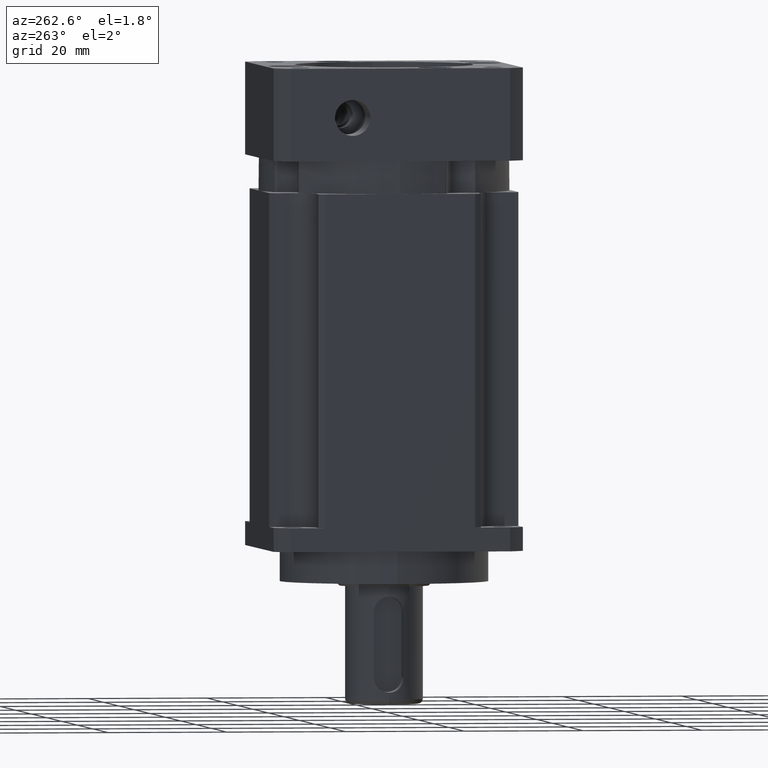
[diagram: clean part render]
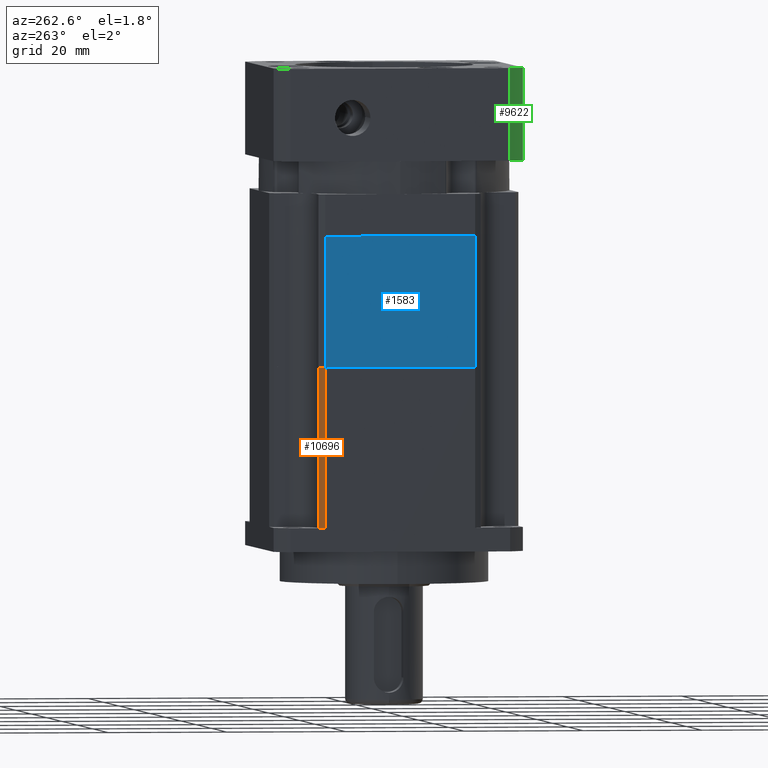
[diagram: same view with three faces highlighted in distinct colors, each labeled with its STEP entity id]
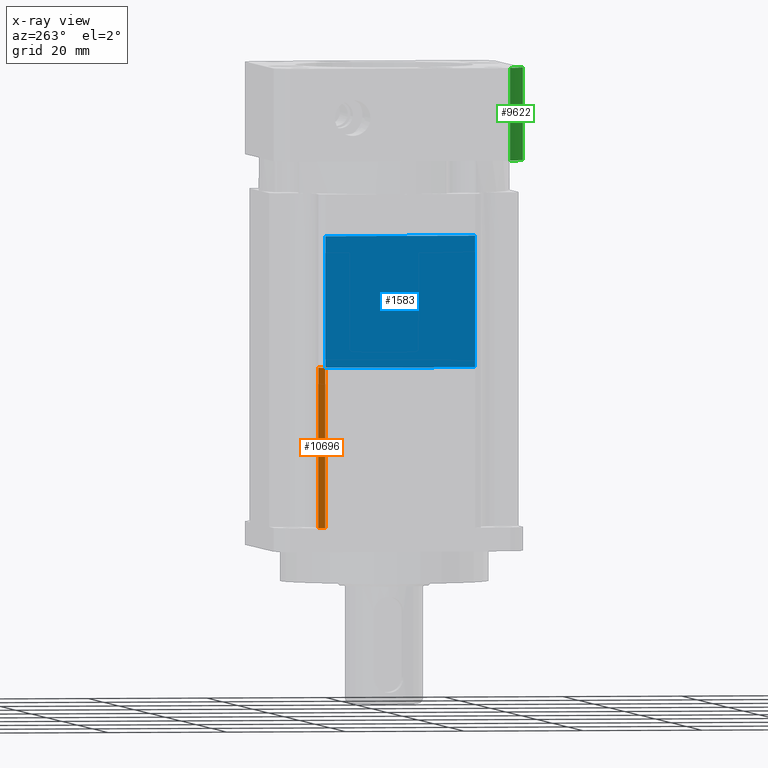
[diagram: x-ray of the same camera — body ghosted, the three highlighted faces saturated]
A machine part, auxiliary view with three faces highlighted in distinct colors.
The next image is the same camera in x-ray (body ghosted, the three faces saturated) — at least one of them is partly hidden behind the body in this view.
Their STEP definitions:

[orange] entity #10696 — the highlighted cylindrical surface (partial cylindrical patch) has radius 24.5 mm, axis along (-0, -0, -1).
#255 = DIRECTION ( 'NONE',  ( -0.0000000000000000000, -0.0000000000000000000, 1.000000000000000000 ) ) ;
#391 = CARTESIAN_POINT ( 'NONE',  ( 3632.603875364589800, 1428.957562994769900, 0.0000000000000000000 ) ) ;
#431 = DIRECTION ( 'NONE',  ( -0.0000000000000000000, -0.0000000000000000000, -1.000000000000000000 ) ) ;
#526 = CARTESIAN_POINT ( 'NONE',  ( 3632.603875364589800, 1428.957562994769900, 26.80000000000000100 ) ) ;
#721 = DIRECTION ( 'NONE',  ( -1.000000000000000000, 0.0000000000000000000, 0.0000000000000000000 ) ) ;
#1344 = CARTESIAN_POINT ( 'NONE',  ( 3653.603875950607300, 1416.338132475112200, 0.0000000000000000000 ) ) ;
#1599 = VERTEX_POINT ( 'NONE', #4014 ) ;
#1836 = EDGE_CURVE ( 'NONE', #10593, #1599, #5885, .T. ) ;
#2612 = DIRECTION ( 'NONE',  ( 0.0000000000000000000, -0.0000000000000000000, -1.000000000000000000 ) ) ;
#2621 = ORIENTED_EDGE ( 'NONE', *, *, #1836, .T. ) ;
#2859 = CARTESIAN_POINT ( 'NONE',  ( 3653.603875950607300, 1416.338132475112200, 26.80000000000000100 ) ) ;
#2933 = VECTOR ( 'NONE', #2612, 1000.000000000000000 ) ;
#3222 = DIRECTION ( 'NONE',  ( -1.000000000000000000, 0.0000000000000000000, 0.0000000000000000000 ) ) ;
#3256 = CYLINDRICAL_SURFACE ( 'NONE', #9272, 24.50000079483372100 ) ;
#3278 = ORIENTED_EDGE ( 'NONE', *, *, #10855, .T. ) ;
#4014 = CARTESIAN_POINT ( 'NONE',  ( 3633.277258400758000, 1430.015802522639900, 0.0000000000000000000 ) ) ;
#4289 = EDGE_CURVE ( 'NONE', #6791, #10566, #5298, .T. ) ;
#4319 = CARTESIAN_POINT ( 'NONE',  ( 3633.277258400758000, 1430.015802522639900, 26.80000000000000100 ) ) ;
#4342 = ORIENTED_EDGE ( 'NONE', *, *, #4289, .T. ) ;
#4744 = CARTESIAN_POINT ( 'NONE',  ( 3632.603875364589800, 1428.957563482365500, 26.80000000000000100 ) ) ;
#5298 = LINE ( 'NONE', #4744, #11480 ) ;
#5511 = FACE_OUTER_BOUND ( 'NONE', #10592, .T. ) ;
#5885 = LINE ( 'NONE', #4319, #2933 ) ;
#6100 = CIRCLE ( 'NONE', #7675, 24.50000079483372100 ) ;
#6468 = EDGE_CURVE ( 'NONE', #10566, #10593, #6100, .T. ) ;
#6791 = VERTEX_POINT ( 'NONE', #391 ) ;
#7658 = DIRECTION ( 'NONE',  ( 0.0000000000000000000, 0.0000000000000000000, 1.000000000000000000 ) ) ;
#7675 = AXIS2_PLACEMENT_3D ( 'NONE', #11206, #431, #3222 ) ;
#7718 = ORIENTED_EDGE ( 'NONE', *, *, #6468, .T. ) ;
#8832 = AXIS2_PLACEMENT_3D ( 'NONE', #1344, #7658, #11249 ) ;
#9272 = AXIS2_PLACEMENT_3D ( 'NONE', #2859, #10675, #721 ) ;
#9779 = CARTESIAN_POINT ( 'NONE',  ( 3633.277258400758000, 1430.015802522639900, 26.80000000000000100 ) ) ;
#10002 = CIRCLE ( 'NONE', #8832, 24.50000079483372100 ) ;
#10566 = VERTEX_POINT ( 'NONE', #526 ) ;
#10592 = EDGE_LOOP ( 'NONE', ( #7718, #2621, #3278, #4342 ) ) ;
#10593 = VERTEX_POINT ( 'NONE', #9779 ) ;
#10675 = DIRECTION ( 'NONE',  ( -0.0000000000000000000, -0.0000000000000000000, -1.000000000000000000 ) ) ;
#10696 = ADVANCED_FACE ( 'NONE', ( #5511 ), #3256, .T. ) ;
#10855 = EDGE_CURVE ( 'NONE', #1599, #6791, #10002, .T. ) ;
#11206 = CARTESIAN_POINT ( 'NONE',  ( 3653.603875950607300, 1416.338132475112200, 26.80000000000000100 ) ) ;
#11249 = DIRECTION ( 'NONE',  ( -1.000000000000000000, 4.894044194676144600E-013, 0.0000000000000000000 ) ) ;
#11480 = VECTOR ( 'NONE', #255, 1000.000000000000000 ) ;

[blue] entity #1583 — the highlighted planar face has unit normal (-1, 0, 0).
#53 = CARTESIAN_POINT ( 'NONE',  ( 3674.603875742843700, 1403.718703088253500, 0.0000000000000000000 ) ) ;
#58 = CARTESIAN_POINT ( 'NONE',  ( 3674.603875742843700, 1428.957562478882200, 22.00000000000000000 ) ) ;
#451 = CARTESIAN_POINT ( 'NONE',  ( 3674.603875742843700, 1428.957562478882000, 22.00000000000000000 ) ) ;
#758 = EDGE_LOOP ( 'NONE', ( #10177, #1869, #7823, #5939 ) ) ;
#1073 = CARTESIAN_POINT ( 'NONE',  ( 3674.603875742843700, 1428.957562478882000, 22.00000000000000000 ) ) ;
#1302 = VERTEX_POINT ( 'NONE', #53 ) ;
#1499 = LINE ( 'NONE', #1073, #3892 ) ;
#1547 = EDGE_CURVE ( 'NONE', #3151, #11504, #1499, .T. ) ;
#1583 = ADVANCED_FACE ( 'NONE', ( #9683 ), #10079, .T. ) ;
#1869 = ORIENTED_EDGE ( 'NONE', *, *, #6065, .T. ) ;
#2382 = DIRECTION ( 'NONE',  ( -0.0000000000000000000, 1.000000000000000000, 0.0000000000000000000 ) ) ;
#2931 = CARTESIAN_POINT ( 'NONE',  ( 3674.603875742843700, 1428.957562478882200, 0.0000000000000000000 ) ) ;
#3151 = VERTEX_POINT ( 'NONE', #58 ) ;
#3283 = CARTESIAN_POINT ( 'NONE',  ( 3674.603875742843700, 1403.718703088254000, 22.00000000000000000 ) ) ;
#3892 = VECTOR ( 'NONE', #8308, 1000.000000000000000 ) ;
#3932 = DIRECTION ( 'NONE',  ( -0.0000000000000000000, 0.0000000000000000000, -1.000000000000000000 ) ) ;
#4301 = VECTOR ( 'NONE', #5021, 1000.000000000000000 ) ;
#4443 = EDGE_CURVE ( 'NONE', #9229, #3151, #8248, .T. ) ;
#4559 = EDGE_CURVE ( 'NONE', #1302, #9229, #6278, .T. ) ;
#4691 = CARTESIAN_POINT ( 'NONE',  ( 3674.603875742843700, 1428.957562478882000, 22.00000000000000000 ) ) ;
#4888 = DIRECTION ( 'NONE',  ( 1.000000000000000000, 0.0000000000000000000, -0.0000000000000000000 ) ) ;
#5021 = DIRECTION ( 'NONE',  ( 0.0000000000000000000, -0.0000000000000000000, 1.000000000000000000 ) ) ;
#5939 = ORIENTED_EDGE ( 'NONE', *, *, #4443, .T. ) ;
#5963 = CARTESIAN_POINT ( 'NONE',  ( 3674.603875742843700, 1416.338132475112200, 0.0000000000000000000 ) ) ;
#6065 = EDGE_CURVE ( 'NONE', #11504, #1302, #8215, .T. ) ;
#6278 = LINE ( 'NONE', #5963, #10071 ) ;
#7376 = VECTOR ( 'NONE', #7892, 1000.000000000000000 ) ;
#7823 = ORIENTED_EDGE ( 'NONE', *, *, #4559, .T. ) ;
#7892 = DIRECTION ( 'NONE',  ( -0.0000000000000000000, 0.0000000000000000000, -1.000000000000000000 ) ) ;
#8016 = CARTESIAN_POINT ( 'NONE',  ( 3674.603875742843700, 1403.718703088253500, 22.00000000000000000 ) ) ;
#8215 = LINE ( 'NONE', #3283, #7376 ) ;
#8248 = LINE ( 'NONE', #451, #4301 ) ;
#8308 = DIRECTION ( 'NONE',  ( -0.0000000000000000000, -1.000000000000000000, -0.0000000000000000000 ) ) ;
#9229 = VERTEX_POINT ( 'NONE', #2931 ) ;
#9683 = FACE_OUTER_BOUND ( 'NONE', #758, .T. ) ;
#10071 = VECTOR ( 'NONE', #2382, 1000.000000000000000 ) ;
#10079 = PLANE ( 'NONE',  #11439 ) ;
#10177 = ORIENTED_EDGE ( 'NONE', *, *, #1547, .T. ) ;
#11439 = AXIS2_PLACEMENT_3D ( 'NONE', #4691, #4888, #3932 ) ;
#11504 = VERTEX_POINT ( 'NONE', #8016 ) ;

[green] entity #9622 — the highlighted cylindrical surface (partial cylindrical patch) has radius 28 mm, axis along (0, 0, -1).
#662 = CARTESIAN_POINT ( 'NONE',  ( 18.52025917745212900, 0.0000000000000000000, 21.00000000000000400 ) ) ;
#908 = DIRECTION ( 'NONE',  ( 0.0000000000000000000, 0.0000000000000000000, -1.000000000000000000 ) ) ;
#1555 = EDGE_LOOP ( 'NONE', ( #2535, #10225, #7984, #2653 ) ) ;
#1915 = VERTEX_POINT ( 'NONE', #9763 ) ;
#2233 = VERTEX_POINT ( 'NONE', #662 ) ;
#2280 = VERTEX_POINT ( 'NONE', #10452 ) ;
#2535 = ORIENTED_EDGE ( 'NONE', *, *, #8741, .T. ) ;
#2653 = ORIENTED_EDGE ( 'NONE', *, *, #3073, .T. ) ;
#3015 = AXIS2_PLACEMENT_3D ( 'NONE', #10573, #4435, #8926 ) ;
#3073 = EDGE_CURVE ( 'NONE', #5854, #2233, #11616, .T. ) ;
#3553 = CARTESIAN_POINT ( 'NONE',  ( 3.469446951953614200E-015, 15.50000000000000000, 6.938893903907228400E-015 ) ) ;
#3764 = DIRECTION ( 'NONE',  ( -0.0000000000000000000, -1.000000000000000000, -0.0000000000000000000 ) ) ;
#4339 = EDGE_CURVE ( 'NONE', #1915, #2280, #7129, .T. ) ;
#4435 = DIRECTION ( 'NONE',  ( 0.0000000000000000000, 1.000000000000000000, 0.0000000000000000000 ) ) ;
#4511 = AXIS2_PLACEMENT_3D ( 'NONE', #3553, #6300, #908 ) ;
#4868 = VECTOR ( 'NONE', #3764, 1000.000000000000000 ) ;
#5719 = VECTOR ( 'NONE', #6129, 1000.000000000000000 ) ;
#5854 = VERTEX_POINT ( 'NONE', #6749 ) ;
#5967 = FACE_OUTER_BOUND ( 'NONE', #1555, .T. ) ;
#6050 = DIRECTION ( 'NONE',  ( 0.0000000000000000000, 0.0000000000000000000, 1.000000000000000000 ) ) ;
#6129 = DIRECTION ( 'NONE',  ( -0.0000000000000000000, -1.000000000000000000, -0.0000000000000000000 ) ) ;
#6300 = DIRECTION ( 'NONE',  ( -0.0000000000000000000, -1.000000000000000000, -0.0000000000000000000 ) ) ;
#6598 = CARTESIAN_POINT ( 'NONE',  ( 20.99999999999998900, 15.50000000000000000, 18.52025917745214300 ) ) ;
#6749 = CARTESIAN_POINT ( 'NONE',  ( 18.52025917745212900, 15.50000000000000000, 21.00000000000000400 ) ) ;
#6922 = DIRECTION ( 'NONE',  ( 0.0000000000000000000, 1.000000000000000000, 0.0000000000000000000 ) ) ;
#7129 = LINE ( 'NONE', #6598, #4868 ) ;
#7472 = CARTESIAN_POINT ( 'NONE',  ( 3.469446951953614200E-015, 15.50000000000000000, 6.938893903907228400E-015 ) ) ;
#7771 = AXIS2_PLACEMENT_3D ( 'NONE', #7472, #6922, #6050 ) ;
#7984 = ORIENTED_EDGE ( 'NONE', *, *, #9150, .F. ) ;
#8741 = EDGE_CURVE ( 'NONE', #2233, #2280, #10263, .T. ) ;
#8926 = DIRECTION ( 'NONE',  ( 0.0000000000000000000, 0.0000000000000000000, 1.000000000000000000 ) ) ;
#9150 = EDGE_CURVE ( 'NONE', #5854, #1915, #9709, .T. ) ;
#9341 = CYLINDRICAL_SURFACE ( 'NONE', #4511, 27.99999999999998900 ) ;
#9622 = ADVANCED_FACE ( 'NONE', ( #5967 ), #9341, .T. ) ;
#9709 = CIRCLE ( 'NONE', #7771, 27.99999999999998900 ) ;
#9763 = CARTESIAN_POINT ( 'NONE',  ( 20.99999999999998900, 15.50000000000000000, 18.52025917745214300 ) ) ;
#9825 = CARTESIAN_POINT ( 'NONE',  ( 18.52025917745212900, 15.50000000000000000, 21.00000000000000400 ) ) ;
#10225 = ORIENTED_EDGE ( 'NONE', *, *, #4339, .F. ) ;
#10263 = CIRCLE ( 'NONE', #3015, 27.99999999999998900 ) ;
#10452 = CARTESIAN_POINT ( 'NONE',  ( 20.99999999999998900, 0.0000000000000000000, 18.52025917745214300 ) ) ;
#10573 = CARTESIAN_POINT ( 'NONE',  ( 3.469446951953614200E-015, 0.0000000000000000000, 6.938893903907228400E-015 ) ) ;
#11616 = LINE ( 'NONE', #9825, #5719 ) ;